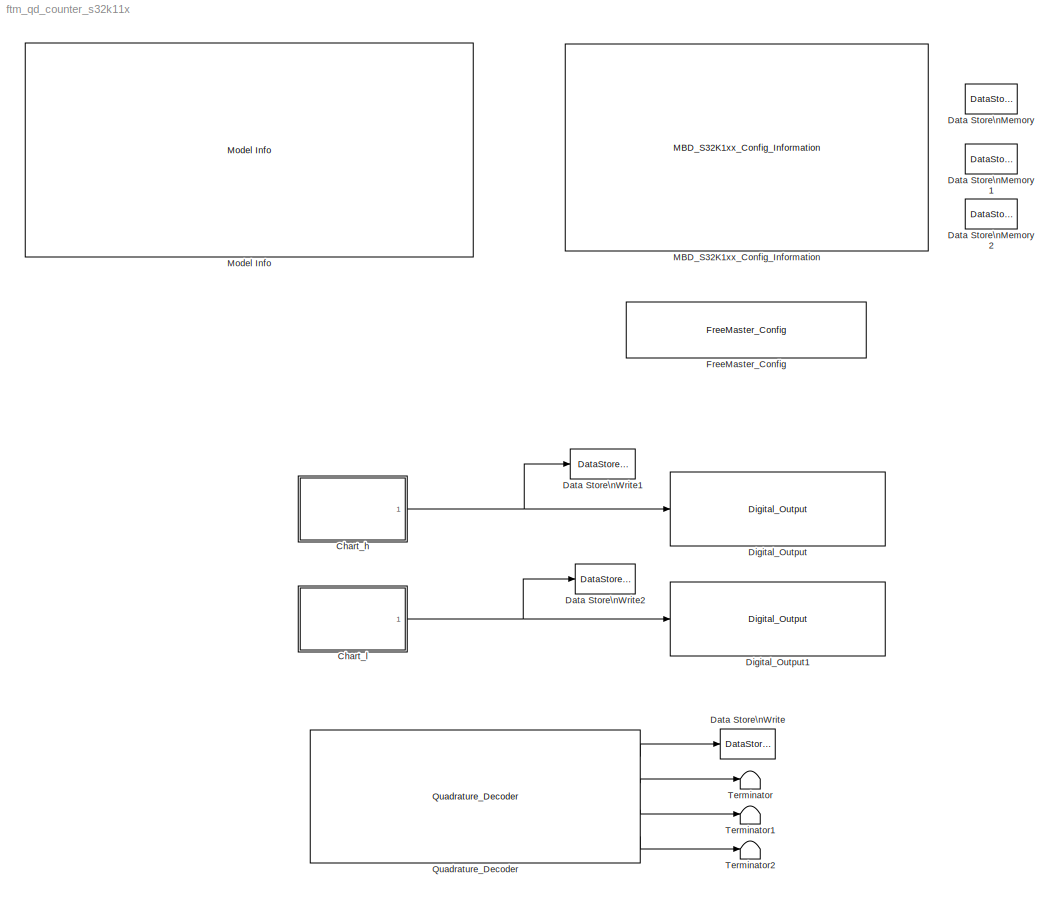
MODEL ftm_qd_counter_s32k11x
KIND model
CONFIG InitFcn = mbd_s32k_consistency_checks(bdroot(gcs));
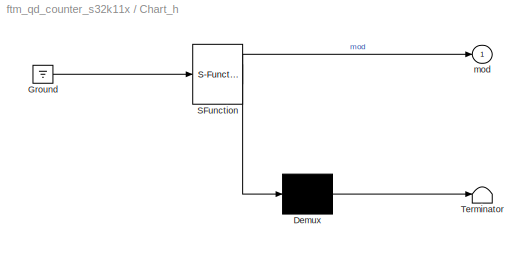
BLOCK [SubSystem] Chart_h
  ErrorFcn = Stateflow.Translate.translate
  PermitHierarchicalResolution = ExplicitOnly
  Ports = [0, 1]
  RequestExecContextInheritance = off
  SFBlockType = Chart
  SID = 8
  TreatAsAtomicUnit = on
  Variant = off
BLOCK [Demux] Chart_h/ Demux 
  Outputs = 1
  Ports = [1, 1]
  SID = 8::56
BLOCK [Ground] Chart_h/ Ground 
  SID = 8::58
BLOCK [S-Function] Chart_h/ SFunction 
  EnableBusSupport = off
  FunctionName = sf_sfun
  PortCounts = [1 2]
  Ports = [1, 2]
  SFcnIsStateOwnerBlock = off
  SFunctionDeploymentMode = off
  SID = 8::55
  Tag = Stateflow S-Function ftm_qd_counter_s32k11x 1
BLOCK [Terminator] Chart_h/ Terminator 
  SID = 8::57
BLOCK [Outport] Chart_h/mod
  IconDisplay = Port number
  SID = 8::30
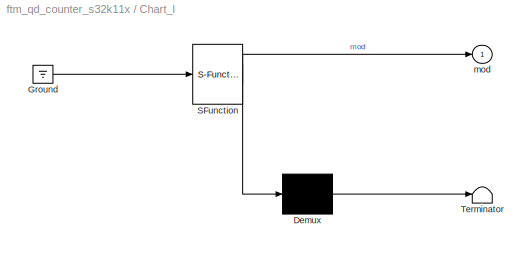
BLOCK [SubSystem] Chart_l
  ErrorFcn = Stateflow.Translate.translate
  PermitHierarchicalResolution = ExplicitOnly
  Ports = [0, 1]
  RequestExecContextInheritance = off
  SFBlockType = Chart
  SID = 9
  TreatAsAtomicUnit = on
  Variant = off
BLOCK [Demux] Chart_l/ Demux 
  Outputs = 1
  Ports = [1, 1]
  SID = 9::56
BLOCK [Ground] Chart_l/ Ground 
  SID = 9::58
BLOCK [S-Function] Chart_l/ SFunction 
  EnableBusSupport = off
  FunctionName = sf_sfun
  PortCounts = [1 2]
  Ports = [1, 2]
  SFcnIsStateOwnerBlock = off
  SFunctionDeploymentMode = off
  SID = 9::55
  Tag = Stateflow S-Function ftm_qd_counter_s32k11x 3
BLOCK [Terminator] Chart_l/ Terminator 
  SID = 9::57
BLOCK [Outport] Chart_l/mod
  IconDisplay = Port number
  SID = 9::30
BLOCK [DataStoreMemory] Data Store\nMemory
  DataStoreName = Counter
  OutDataTypeStr = uint16
  ReadBeforeWriteMsg = warning
  SID = 4
  ShowAdditionalParam = off
  WriteAfterReadMsg = warning
  WriteAfterWriteMsg = warning
BLOCK [DataStoreMemory] Data Store\nMemory1
  DataStoreName = Chart_H
  OutDataTypeStr = boolean
  ReadBeforeWriteMsg = warning
  SID = 27
  ShowAdditionalParam = off
  WriteAfterReadMsg = warning
  WriteAfterWriteMsg = warning
BLOCK [DataStoreMemory] Data Store\nMemory2
  DataStoreName = Chart_I
  OutDataTypeStr = boolean
  ReadBeforeWriteMsg = warning
  SID = 28
  ShowAdditionalParam = off
  WriteAfterReadMsg = warning
  WriteAfterWriteMsg = warning
BLOCK [DataStoreWrite] Data Store\nWrite
  DataStoreElements = Counter
  DataStoreName = Counter
  Ports = [1]
  SID = 5
BLOCK [DataStoreWrite] Data Store\nWrite1
  DataStoreElements = Chart_H
  DataStoreName = Chart_H
  Ports = [1]
  SID = 29
BLOCK [DataStoreWrite] Data Store\nWrite2
  DataStoreElements = Chart_I
  DataStoreName = Chart_I
  Ports = [1]
  SID = 30
BLOCK [Reference] Digital_Output  REF=mbd_s32k1xx_ec_toolbox/GPIO Blocks/Digital_Output
  Ports = [1]
  SID = 10
  SourceBlock = mbd_s32k1xx_ec_toolbox/GPIO Blocks/Digital_Output
  SourceType = gpio_s32k_output
  drive_strength = Low
  gpio_pin = PTC3: [PTC3 | Port C I/O]
  init_val = Low
BLOCK [Reference] Digital_Output1  REF=mbd_s32k1xx_ec_toolbox/GPIO Blocks/Digital_Output
  Ports = [1]
  SID = 11
  SourceBlock = mbd_s32k1xx_ec_toolbox/GPIO Blocks/Digital_Output
  SourceType = gpio_s32k_output
  drive_strength = Low
  gpio_pin = PTC2: [PTC2 | Port C I/O]
  init_val = Low
BLOCK [Reference] FreeMaster_Config  REF=mbd_s32k1xx_ec_toolbox/Utility Blocks/FreeMaster_Config
  Ports = []
  SID = 15
  SourceBlock = mbd_s32k1xx_ec_toolbox/Utility Blocks/FreeMaster_Config
  SourceType = fm_s32k_config
  baudrate = 115200
  comm_buffer_size = 255
  comm_buffer_size_auto = on
  comm_rqueue_size = 32
  comm_rqueue_size_default = on
  interface = LPUART0
  isr_prio = 0
  max_rec_vars = 8
  max_scope_vars = 8
  mode = Poll-driven
  rec_buff_size = 1024
  rec_timebase = 0
  rec_timebase_unit = seconds
  rxd = PTB0: [LPUART0_RX | Receive]
  show_adv_opts = off
  txd = PTB1: [LPUART0_TX | Transmit]
  use_recorder = on
  use_scope = on
BLOCK [Reference] MBD_S32K1xx_Config_Information  REF=mbd_s32k1xx_ec_toolbox/MBD_S32K1xx_Config_Information
  ADC_PcrCheckEnDis = on
  AMMCLIB_PcrCheckEnDis = on
  CMP_PcrCheckEnDis = on
  CSEc_PcrCheckEnDis = on
  ConfigParams_PcrCheckEnDis = on
  FM_PcrCheckEnDis = on
  FTM_Dual_Edge_Inputs_PcrCheckEnDis = on
  FTM_Hall_Sensor_Inputs_PcrCheckEnDis = on
  FTM_Input_Edge_Inputs_PcrCheckEnDis = on
  FTM_PWM_PcrCheckEnDis = on
  FTM_Quadrature_Inputs_PcrCheckEnDis = on
  FlexCAN_PcrCheckEnDis = on
  FlexIO_PcrCheckEnDis = on
  GPIO_InputPcrCheckEnDis = on
  GPIO_OutputPcrCheckEnDis = on
  LIN_PcrCheckEnDis = on
  LPI2C_PcrCheckEnDis = on
  LPSPI_PcrCheckEnDis = on
  LPTMR_PcrCheckEnDis = on
  LPUART_PcrCheckEnDis = on
  ModelRef_PcrCheckEnDis = on
  PDB0_PcrCheckEnDis = on
  PIT_PcrCheckEnDis = on
  Ports = []
  Profile_PcrCheckEnDis = on
  RTC_PcrCheckEnDis = on
  SBC_PcrCheckEnDis = on
  SID = 26
  SourceBlock = mbd_s32k1xx_ec_toolbox/MBD_S32K1xx_Config_Information
  SourceType = MBDTBX_EC_S32K
  WDOG_PcrCheckEnDis = on
  config_params = []
  disp_str = Target : S32K144-64KB_SRAM\nPackage : 100-pin\nSystem clock : 80 MHz\nXTAL clock : External 8 MHz\nCompiler : IAR\nTarget Type : FLASH\nDownload Code after build : off\nStep Tick Interrupt Priority : 15
  ds_import_enable = on
  eDMA_PcrCheckEnDis = on
  gcc_target_assemble_opts = -mcpu=cortex-m0plus -mthumb -g
  gcc_target_compile_opts = -mcpu=cortex-m0plus -mthumb -O1 -g -gstrict-dwarf
  gcc_target_default_lcf = on
  gcc_target_link_opts = -mcpu=cortex-m0plus -mthumb
  gcc_target_user_lcf = S32K118_25_flash.ld
  ghs_target_assemble_opts = -mcpu=cortexm0plus -mthumb -fsoft --gnu_asm
  ghs_target_compile_opts = -mcpu=cortexm0plus -mthumb -fsoft -Ogeneral -Wundef -Wimplicit-int -Wshadow -Wtrigraphs --no_commons --gnu_asm -gnu99 -gdwarf-2 -G
  ghs_target_default_lcf = on
  ghs_target_link_opts = -mcpu=cortexm0plus -mthumb -fsoft
  ghs_target_user_lcf = S32K118_25_flash.ld
  iar_target_assemble_opts = --thumb
  iar_target_compile_opts = --thumb -Ol -e --debug --dlib_config normal
  iar_target_default_lcf = on
  iar_target_link_opts = --no_exceptions --vfe --inline
  iar_target_user_lcf = S32K118_25_flash.icf
  mbdt_ver = 0
  mcu_steptick_prio = 3
  mcu_steptick_timer = LPIT Channel 0
  mcu_system_clock_freq = 40
  mcu_target_name = S32K118
  mcu_target_package = 64-LQFP
  mcu_target_sram_size = 25KB
  mcu_xtal_freq = External 40
  pil_download_enable = off
  pil_download_rate = 57600
  pil_opensda_drive = Custom
  pil_opensda_drive_custom = D
  pil_uart_instance = 0
  pil_uart_rx = PTA2: [LPUART0_RX | Receive]
  pil_uart_tx = PTA3: [LPUART0_TX | Transmit]
  rbl_com_port = Custom
  rbl_com_port_custom = COM1
  rbl_download_enable = on
  rbl_download_interface = OpenSDA
  rbl_restart_request = off
  rbl_start_delay = 5000
  target_compiler = GCC
  target_memory = FLASH
BLOCK [Reference] Model Info  REF=simulink/Model-Wide\nUtilities/Model Info
  DisplayStringWithTags = Model Name: %<ModelName>\n\nDescription: %<Description>
  Frame = off
  HorizontalTextAlignment = Left
  LeftAlignmentValue = 0.02
  MaskDisplayString = Model Name: ftm_qd_counter_s32k11x\\n\\nDescription: This model shows FlexTimer Quadrature Decoder Mode in Counter and Direction on <path> PTC3 output to FTM1 Phase A input PTB3\\nConnect PTC2 output to FTM1 Phase B input PTB2\\n\\nValidation:\\nYou can see FTM1 Counter value increment and decrement\\nin Count and Direction Mode by FreeMaster ftm_qd_counter_s32k11x.
  Ports = []
  SID = 31
  SourceBlock = simulink/Model-Wide\nUtilities/Model Info
  SourceProductBaseCode = SL
  SourceProductName = Simulink
  SourceType = CMBlock
BLOCK [Reference] Quadrature_Decoder  REF=mbd_s32k1xx_ec_toolbox/Motor Control Blocks/FTM Blocks/Quadrature_Decoder
  Ports = [0, 4]
  Priority = 1
  SID = 12
  SourceBlock = mbd_s32k1xx_ec_toolbox/Motor Control Blocks/FTM Blocks/Quadrature_Decoder
  SourceType = FTM_s32k_qd_block
  cntin = 0
  ec_mode = Count and Direction
  ftmModule = 1
  mod = 65535
  phA_filter = 0
  phA_filtr_en = off
  phA_pin = PTB3: [FTM1_QD_PHA | FTM quadrature Decode PhaseA]
  phB_filter = 0
  phB_filtr_en = off
  phB_pin = PTB2: [FTM1_QD_PHB | FTM quadrature Decode PhaseB]
  polA = Normal
  polB = Normal
  prescaler = 1
BLOCK [Terminator] Terminator
  SID = 35
BLOCK [Terminator] Terminator1
  SID = 36
BLOCK [Terminator] Terminator2
  SID = 37
LINE Chart_h/ Demux :1 -> Chart_h/ Terminator :1
LINE Chart_h/ Ground :1 -> Chart_h/ SFunction :1
LINE Chart_h/ SFunction :1 -> Chart_h/ Demux :1
LINE Chart_h/ SFunction :2 -> Chart_h/mod:1
NET Chart_h:1 -> Data Store\nWrite1:1, Digital_Output:1
LINE Chart_l/ Demux :1 -> Chart_l/ Terminator :1
LINE Chart_l/ Ground :1 -> Chart_l/ SFunction :1
LINE Chart_l/ SFunction :1 -> Chart_l/ Demux :1
LINE Chart_l/ SFunction :2 -> Chart_l/mod:1
NET Chart_l:1 -> Data Store\nWrite2:1, Digital_Output1:1
LINE Quadrature_Decoder:1 -> Data Store\nWrite:1
LINE Quadrature_Decoder:2 -> Terminator:1
LINE Quadrature_Decoder:3 -> Terminator1:1
LINE Quadrature_Decoder:4 -> Terminator2:1
note: NET lines group one-source signal fan-out (src -> all destinations, sorted); 1:1 wires keep LINE
CHART Chart_h states=2 transitions=3
  STATE_LABEL 'A\\ndu:\\nmod = 0;\\ncntr=cntr+1;'
  STATE_LABEL 'A1\\ndu:\\nmod = 1;\\ncntr=cntr+1;'
CHART Chart_l states=2 transitions=3
  STATE_LABEL 'A\\ndu:\\nmod = 1;\\ncntr=cntr+1;'
  STATE_LABEL 'A1\\ndu:\\nmod = 0;\\ncntr=cntr+1;'
note: 1 file-system path scrubbed to <path> (not preserved elsewhere — flat text is the only slx artifact)
